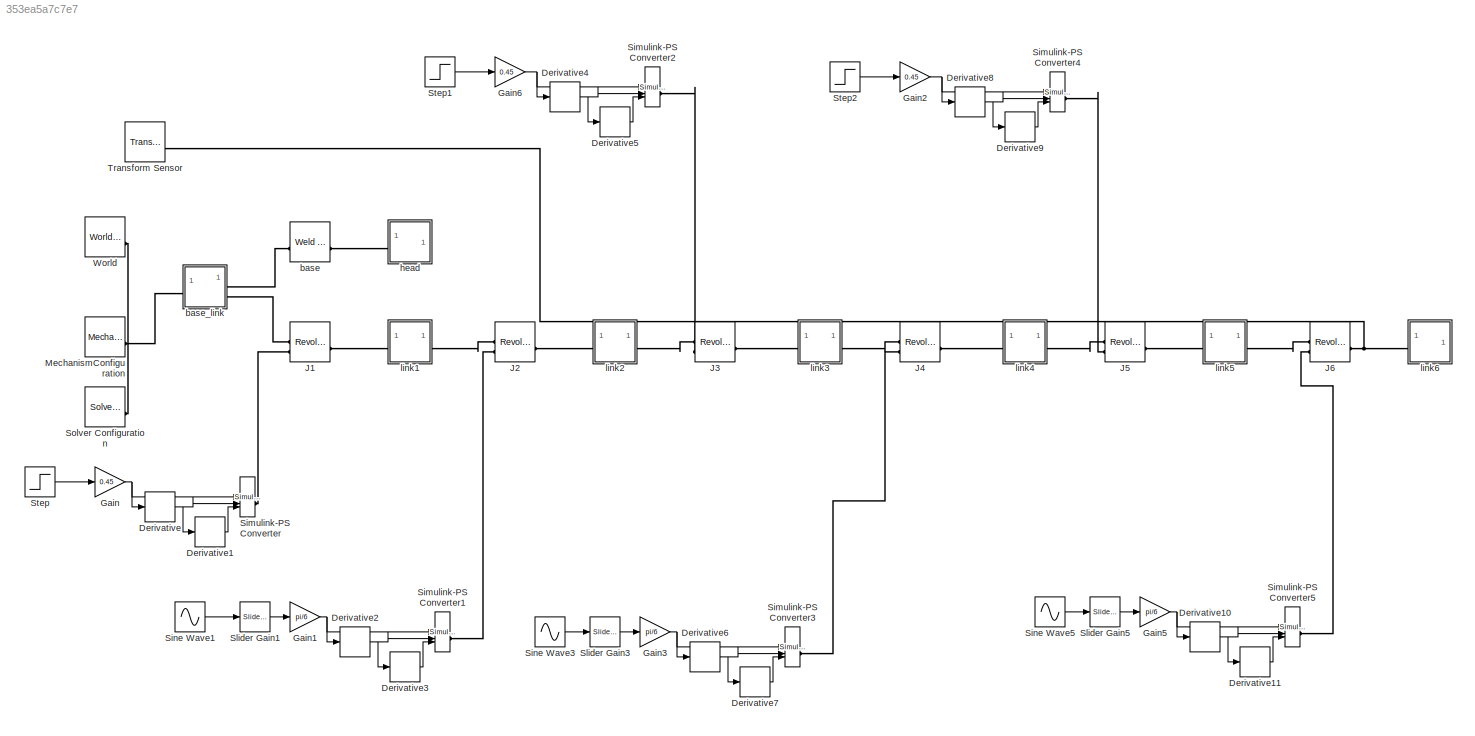
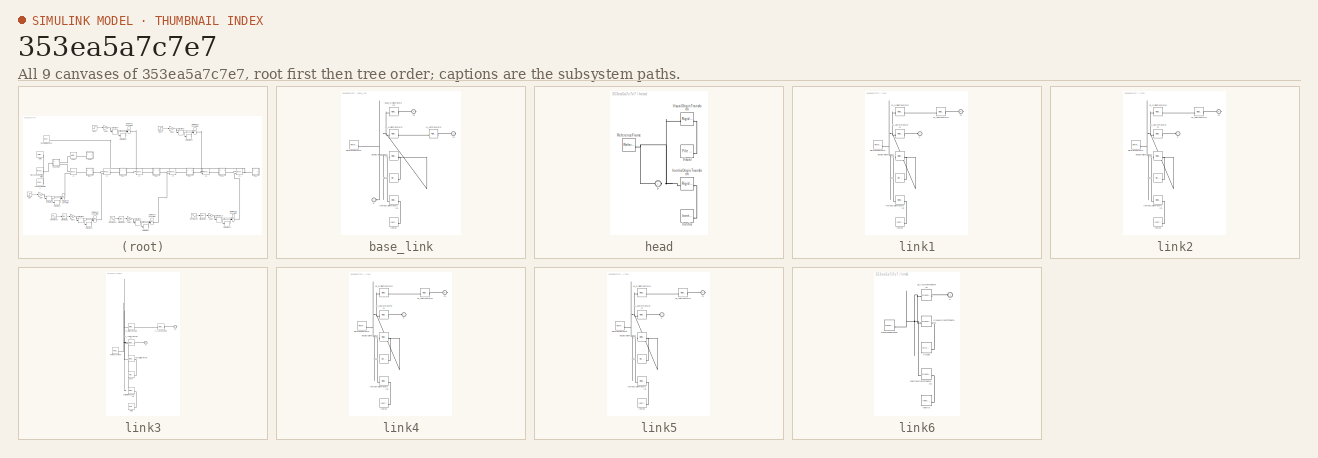
[diagram: thumbnail index - all 9 canvases of the model, root first then tree order]
MODEL slx_353ea5a7c7e7
KIND model
CONFIG AbsTol = auto
CONFIG EnableMultiTasking = off
CONFIG FixedStep = auto
CONFIG MaxStep = auto
CONFIG MinStep = auto
CONFIG RelTol = 1e-3
CONFIG SampleTimeConstraint = Unconstrained
CONFIG SolverName = VariableStepAuto
CONFIG StartTime = 0.0
CONFIG StopTime = 100
BLOCK [Derivative] Derivative
BLOCK [Derivative] Derivative1
BLOCK [Derivative] Derivative10
BLOCK [Derivative] Derivative11
BLOCK [Derivative] Derivative2
BLOCK [Derivative] Derivative3
BLOCK [Derivative] Derivative4
BLOCK [Derivative] Derivative5
BLOCK [Derivative] Derivative6
BLOCK [Derivative] Derivative7
BLOCK [Derivative] Derivative8
BLOCK [Derivative] Derivative9
BLOCK [Gain] Gain
  Gain = 0.45
BLOCK [Gain] Gain1
  Gain = pi/6
BLOCK [Gain] Gain2
  Gain = 0.45
BLOCK [Gain] Gain3
  Gain = pi/6
BLOCK [Gain] Gain5
  Gain = pi/6
BLOCK [Gain] Gain6
  Gain = 0.45
BLOCK [Reference] J1  REF=sm_lib/Joints/Revolute Joint
  SourceBlock = sm_lib/Joints/Revolute Joint
  SourceType = Revolute Joint
BLOCK [Reference] J2  REF=sm_lib/Joints/Revolute Joint
  SourceBlock = sm_lib/Joints/Revolute Joint
  SourceType = Revolute Joint
BLOCK [Reference] J3  REF=sm_lib/Joints/Revolute Joint
  SourceBlock = sm_lib/Joints/Revolute Joint
  SourceType = Revolute Joint
BLOCK [Reference] J4  REF=sm_lib/Joints/Revolute Joint
  SourceBlock = sm_lib/Joints/Revolute Joint
  SourceType = Revolute Joint
BLOCK [Reference] J5  REF=sm_lib/Joints/Revolute Joint
  SourceBlock = sm_lib/Joints/Revolute Joint
  SourceType = Revolute Joint
BLOCK [Reference] J6  REF=sm_lib/Joints/Revolute Joint
  SourceBlock = sm_lib/Joints/Revolute Joint
  SourceType = Revolute Joint
BLOCK [Reference] MechanismConfiguration  REF=sm_lib/Utilities/Mechanism
Configuration
  SourceBlock = sm_lib/Utilities/Mechanism\nConfiguration
  SourceType = Mechanism\nConfiguration
BLOCK [Reference] Simulink-PS Converter  REF=nesl_utility/Simulink-PS
Converter
  SourceBlock = nesl_utility/Simulink-PS\nConverter
  SourceType = Simulink-PS\nConverter
BLOCK [Reference] Simulink-PS Converter1  REF=nesl_utility/Simulink-PS
Converter
  SourceBlock = nesl_utility/Simulink-PS\nConverter
  SourceType = Simulink-PS\nConverter
BLOCK [Reference] Simulink-PS Converter2  REF=nesl_utility/Simulink-PS
Converter
  SourceBlock = nesl_utility/Simulink-PS\nConverter
  SourceType = Simulink-PS\nConverter
BLOCK [Reference] Simulink-PS Converter3  REF=nesl_utility/Simulink-PS
Converter
  SourceBlock = nesl_utility/Simulink-PS\nConverter
  SourceType = Simulink-PS\nConverter
BLOCK [Reference] Simulink-PS Converter4  REF=nesl_utility/Simulink-PS
Converter
  SourceBlock = nesl_utility/Simulink-PS\nConverter
  SourceType = Simulink-PS\nConverter
BLOCK [Reference] Simulink-PS Converter5  REF=nesl_utility/Simulink-PS
Converter
  SourceBlock = nesl_utility/Simulink-PS\nConverter
  SourceType = Simulink-PS\nConverter
BLOCK [Sin] Sine Wave1
  Frequency = 15
  Phase = pi/3
  SampleTime = 0
BLOCK [Sin] Sine Wave3
  Frequency = 10
  Phase = 3*pi/3
  SampleTime = 0
BLOCK [Sin] Sine Wave5
  Frequency = 10
  Phase = 5*pi/3
  SampleTime = 0
BLOCK [Reference] Slider Gain1  REF=simulink/Math
Operations/Slider
Gain
  SourceBlock = simulink/Math\nOperations/Slider\nGain
  SourceType = Slider Gain
BLOCK [Reference] Slider Gain3  REF=simulink/Math
Operations/Slider
Gain
  SourceBlock = simulink/Math\nOperations/Slider\nGain
  SourceType = Slider Gain
BLOCK [Reference] Slider Gain5  REF=simulink/Math
Operations/Slider
Gain
  SourceBlock = simulink/Math\nOperations/Slider\nGain
  SourceType = Slider Gain
BLOCK [Reference] Solver Configuration  REF=nesl_utility/Solver
Configuration
  SourceBlock = nesl_utility/Solver\nConfiguration
  SourceType = Solver\nConfiguration
BLOCK [Step] Step
  SampleTime = 0
  Time = 0
BLOCK [Step] Step1
  SampleTime = 0
  Time = 0
BLOCK [Step] Step2
  SampleTime = 0
  Time = 0
BLOCK [Reference] Transform Sensor  REF=sm_lib/Frames and
Transforms/Transform
Sensor
  SourceBlock = sm_lib/Frames and\nTransforms/Transform\nSensor
  SourceType = Transform\nSensor
BLOCK [Reference] World  REF=sm_lib/Frames and
Transforms/World Frame
  SourceBlock = sm_lib/Frames and\nTransforms/World Frame
  SourceType = World Frame
BLOCK [Reference] base  REF=sm_lib/Joints/Weld Joint
  SourceBlock = sm_lib/Joints/Weld Joint
  SourceType = Weld Joint
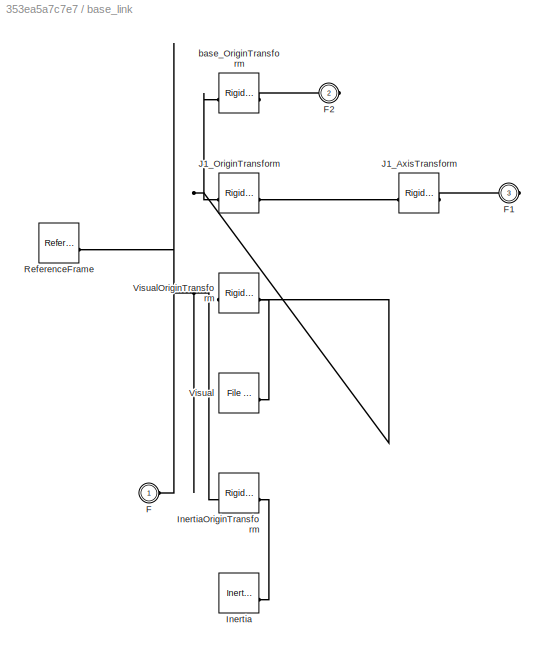
BLOCK [SubSystem] base_link
BLOCK [PMIOPort] base_link/F
  Side = Left
BLOCK [PMIOPort] base_link/F1
  Port = 3
  Side = Right
BLOCK [PMIOPort] base_link/F2
  Port = 2
  Side = Right
BLOCK [Reference] base_link/Inertia  REF=sm_lib/Body Elements/Inertia
  SourceBlock = sm_lib/Body Elements/Inertia
  SourceType = Inertia
BLOCK [Reference] base_link/InertiaOriginTransform  REF=sm_lib/Frames and
Transforms/Rigid
Transform
  SourceBlock = sm_lib/Frames and\nTransforms/Rigid\nTransform
  SourceType = Rigid\nTransform
BLOCK [Reference] base_link/J1_AxisTransform  REF=sm_lib/Frames and
Transforms/Rigid
Transform
  SourceBlock = sm_lib/Frames and\nTransforms/Rigid\nTransform
  SourceType = Rigid\nTransform
BLOCK [Reference] base_link/J1_OriginTransform  REF=sm_lib/Frames and
Transforms/Rigid
Transform
  SourceBlock = sm_lib/Frames and\nTransforms/Rigid\nTransform
  SourceType = Rigid\nTransform
BLOCK [Reference] base_link/ReferenceFrame  REF=sm_lib/Frames and
Transforms/Reference
Frame
  SourceBlock = sm_lib/Frames and\nTransforms/Reference\nFrame
  SourceType = Reference\nFrame
BLOCK [Reference] base_link/Visual  REF=sm_lib/Body Elements/File Solid
  SourceBlock = sm_lib/Body Elements/File Solid
  SourceType = File Solid
BLOCK [Reference] base_link/VisualOriginTransform  REF=sm_lib/Frames and
Transforms/Rigid
Transform
  SourceBlock = sm_lib/Frames and\nTransforms/Rigid\nTransform
  SourceType = Rigid\nTransform
BLOCK [Reference] base_link/base_OriginTransform  REF=sm_lib/Frames and
Transforms/Rigid
Transform
  SourceBlock = sm_lib/Frames and\nTransforms/Rigid\nTransform
  SourceType = Rigid\nTransform
BLOCK [SubSystem] head
BLOCK [PMIOPort] head/F
  Side = Left
BLOCK [Reference] head/Inertia  REF=sm_lib/Body Elements/Inertia
  SourceBlock = sm_lib/Body Elements/Inertia
  SourceType = Inertia
BLOCK [Reference] head/InertiaOriginTransform  REF=sm_lib/Frames and
Transforms/Rigid
Transform
  SourceBlock = sm_lib/Frames and\nTransforms/Rigid\nTransform
  SourceType = Rigid\nTransform
BLOCK [Reference] head/ReferenceFrame  REF=sm_lib/Frames and
Transforms/Reference
Frame
  SourceBlock = sm_lib/Frames and\nTransforms/Reference\nFrame
  SourceType = Reference\nFrame
BLOCK [Reference] head/Visual  REF=sm_lib/Body Elements/File Solid
  SourceBlock = sm_lib/Body Elements/File Solid
  SourceType = File Solid
BLOCK [Reference] head/VisualOriginTransform  REF=sm_lib/Frames and
Transforms/Rigid
Transform
  SourceBlock = sm_lib/Frames and\nTransforms/Rigid\nTransform
  SourceType = Rigid\nTransform
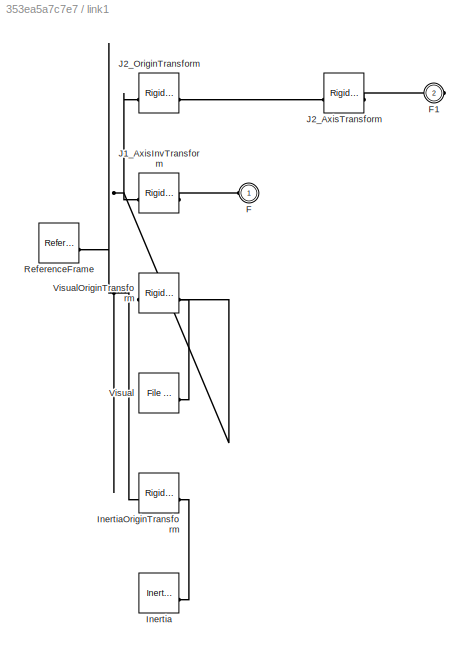
BLOCK [SubSystem] link1
BLOCK [PMIOPort] link1/F
  Side = Left
BLOCK [PMIOPort] link1/F1
  Port = 2
  Side = Right
BLOCK [Reference] link1/Inertia  REF=sm_lib/Body Elements/Inertia
  SourceBlock = sm_lib/Body Elements/Inertia
  SourceType = Inertia
BLOCK [Reference] link1/InertiaOriginTransform  REF=sm_lib/Frames and
Transforms/Rigid
Transform
  SourceBlock = sm_lib/Frames and\nTransforms/Rigid\nTransform
  SourceType = Rigid\nTransform
BLOCK [Reference] link1/J1_AxisInvTransform  REF=sm_lib/Frames and
Transforms/Rigid
Transform
  SourceBlock = sm_lib/Frames and\nTransforms/Rigid\nTransform
  SourceType = Rigid\nTransform
BLOCK [Reference] link1/J2_AxisTransform  REF=sm_lib/Frames and
Transforms/Rigid
Transform
  SourceBlock = sm_lib/Frames and\nTransforms/Rigid\nTransform
  SourceType = Rigid\nTransform
BLOCK [Reference] link1/J2_OriginTransform  REF=sm_lib/Frames and
Transforms/Rigid
Transform
  SourceBlock = sm_lib/Frames and\nTransforms/Rigid\nTransform
  SourceType = Rigid\nTransform
BLOCK [Reference] link1/ReferenceFrame  REF=sm_lib/Frames and
Transforms/Reference
Frame
  SourceBlock = sm_lib/Frames and\nTransforms/Reference\nFrame
  SourceType = Reference\nFrame
BLOCK [Reference] link1/Visual  REF=sm_lib/Body Elements/File Solid
  SourceBlock = sm_lib/Body Elements/File Solid
  SourceType = File Solid
BLOCK [Reference] link1/VisualOriginTransform  REF=sm_lib/Frames and
Transforms/Rigid
Transform
  SourceBlock = sm_lib/Frames and\nTransforms/Rigid\nTransform
  SourceType = Rigid\nTransform
BLOCK [SubSystem] link2
BLOCK [PMIOPort] link2/F
  Side = Left
BLOCK [PMIOPort] link2/F1
  Port = 2
  Side = Right
BLOCK [Reference] link2/Inertia  REF=sm_lib/Body Elements/Inertia
  SourceBlock = sm_lib/Body Elements/Inertia
  SourceType = Inertia
BLOCK [Reference] link2/InertiaOriginTransform  REF=sm_lib/Frames and
Transforms/Rigid
Transform
  SourceBlock = sm_lib/Frames and\nTransforms/Rigid\nTransform
  SourceType = Rigid\nTransform
BLOCK [Reference] link2/J2_AxisInvTransform  REF=sm_lib/Frames and
Transforms/Rigid
Transform
  SourceBlock = sm_lib/Frames and\nTransforms/Rigid\nTransform
  SourceType = Rigid\nTransform
BLOCK [Reference] link2/J3_AxisTransform  REF=sm_lib/Frames and
Transforms/Rigid
Transform
  SourceBlock = sm_lib/Frames and\nTransforms/Rigid\nTransform
  SourceType = Rigid\nTransform
BLOCK [Reference] link2/J3_OriginTransform  REF=sm_lib/Frames and
Transforms/Rigid
Transform
  SourceBlock = sm_lib/Frames and\nTransforms/Rigid\nTransform
  SourceType = Rigid\nTransform
BLOCK [Reference] link2/ReferenceFrame  REF=sm_lib/Frames and
Transforms/Reference
Frame
  SourceBlock = sm_lib/Frames and\nTransforms/Reference\nFrame
  SourceType = Reference\nFrame
BLOCK [Reference] link2/Visual  REF=sm_lib/Body Elements/File Solid
  SourceBlock = sm_lib/Body Elements/File Solid
  SourceType = File Solid
BLOCK [Reference] link2/VisualOriginTransform  REF=sm_lib/Frames and
Transforms/Rigid
Transform
  SourceBlock = sm_lib/Frames and\nTransforms/Rigid\nTransform
  SourceType = Rigid\nTransform
BLOCK [SubSystem] link3
BLOCK [PMIOPort] link3/F
  Side = Left
BLOCK [PMIOPort] link3/F1
  Port = 2
  Side = Right
BLOCK [Reference] link3/Inertia  REF=sm_lib/Body Elements/Inertia
  SourceBlock = sm_lib/Body Elements/Inertia
  SourceType = Inertia
BLOCK [Reference] link3/InertiaOriginTransform  REF=sm_lib/Frames and
Transforms/Rigid
Transform
  SourceBlock = sm_lib/Frames and\nTransforms/Rigid\nTransform
  SourceType = Rigid\nTransform
BLOCK [Reference] link3/J3_AxisInvTransform  REF=sm_lib/Frames and
Transforms/Rigid
Transform
  SourceBlock = sm_lib/Frames and\nTransforms/Rigid\nTransform
  SourceType = Rigid\nTransform
BLOCK [Reference] link3/J4_AxisTransform  REF=sm_lib/Frames and
Transforms/Rigid
Transform
  SourceBlock = sm_lib/Frames and\nTransforms/Rigid\nTransform
  SourceType = Rigid\nTransform
BLOCK [Reference] link3/J4_OriginTransform  REF=sm_lib/Frames and
Transforms/Rigid
Transform
  SourceBlock = sm_lib/Frames and\nTransforms/Rigid\nTransform
  SourceType = Rigid\nTransform
BLOCK [Reference] link3/ReferenceFrame  REF=sm_lib/Frames and
Transforms/Reference
Frame
  SourceBlock = sm_lib/Frames and\nTransforms/Reference\nFrame
  SourceType = Reference\nFrame
BLOCK [Reference] link3/Visual  REF=sm_lib/Body Elements/File Solid
  SourceBlock = sm_lib/Body Elements/File Solid
  SourceType = File Solid
BLOCK [Reference] link3/VisualOriginTransform  REF=sm_lib/Frames and
Transforms/Rigid
Transform
  SourceBlock = sm_lib/Frames and\nTransforms/Rigid\nTransform
  SourceType = Rigid\nTransform
BLOCK [SubSystem] link4
BLOCK [PMIOPort] link4/F
  Side = Left
BLOCK [PMIOPort] link4/F1
  Port = 2
  Side = Right
BLOCK [Reference] link4/Inertia  REF=sm_lib/Body Elements/Inertia
  SourceBlock = sm_lib/Body Elements/Inertia
  SourceType = Inertia
BLOCK [Reference] link4/InertiaOriginTransform  REF=sm_lib/Frames and
Transforms/Rigid
Transform
  SourceBlock = sm_lib/Frames and\nTransforms/Rigid\nTransform
  SourceType = Rigid\nTransform
BLOCK [Reference] link4/J4_AxisInvTransform  REF=sm_lib/Frames and
Transforms/Rigid
Transform
  SourceBlock = sm_lib/Frames and\nTransforms/Rigid\nTransform
  SourceType = Rigid\nTransform
BLOCK [Reference] link4/J5_AxisTransform  REF=sm_lib/Frames and
Transforms/Rigid
Transform
  SourceBlock = sm_lib/Frames and\nTransforms/Rigid\nTransform
  SourceType = Rigid\nTransform
BLOCK [Reference] link4/J5_OriginTransform  REF=sm_lib/Frames and
Transforms/Rigid
Transform
  SourceBlock = sm_lib/Frames and\nTransforms/Rigid\nTransform
  SourceType = Rigid\nTransform
BLOCK [Reference] link4/ReferenceFrame  REF=sm_lib/Frames and
Transforms/Reference
Frame
  SourceBlock = sm_lib/Frames and\nTransforms/Reference\nFrame
  SourceType = Reference\nFrame
BLOCK [Reference] link4/Visual  REF=sm_lib/Body Elements/File Solid
  SourceBlock = sm_lib/Body Elements/File Solid
  SourceType = File Solid
BLOCK [Reference] link4/VisualOriginTransform  REF=sm_lib/Frames and
Transforms/Rigid
Transform
  SourceBlock = sm_lib/Frames and\nTransforms/Rigid\nTransform
  SourceType = Rigid\nTransform
BLOCK [SubSystem] link5
BLOCK [PMIOPort] link5/F
  Side = Left
BLOCK [PMIOPort] link5/F1
  Port = 2
  Side = Right
BLOCK [Reference] link5/Inertia  REF=sm_lib/Body Elements/Inertia
  SourceBlock = sm_lib/Body Elements/Inertia
  SourceType = Inertia
BLOCK [Reference] link5/InertiaOriginTransform  REF=sm_lib/Frames and
Transforms/Rigid
Transform
  SourceBlock = sm_lib/Frames and\nTransforms/Rigid\nTransform
  SourceType = Rigid\nTransform
BLOCK [Reference] link5/J5_AxisInvTransform  REF=sm_lib/Frames and
Transforms/Rigid
Transform
  SourceBlock = sm_lib/Frames and\nTransforms/Rigid\nTransform
  SourceType = Rigid\nTransform
BLOCK [Reference] link5/J6_AxisTransform  REF=sm_lib/Frames and
Transforms/Rigid
Transform
  SourceBlock = sm_lib/Frames and\nTransforms/Rigid\nTransform
  SourceType = Rigid\nTransform
BLOCK [Reference] link5/J6_OriginTransform  REF=sm_lib/Frames and
Transforms/Rigid
Transform
  SourceBlock = sm_lib/Frames and\nTransforms/Rigid\nTransform
  SourceType = Rigid\nTransform
BLOCK [Reference] link5/ReferenceFrame  REF=sm_lib/Frames and
Transforms/Reference
Frame
  SourceBlock = sm_lib/Frames and\nTransforms/Reference\nFrame
  SourceType = Reference\nFrame
BLOCK [Reference] link5/Visual  REF=sm_lib/Body Elements/File Solid
  SourceBlock = sm_lib/Body Elements/File Solid
  SourceType = File Solid
BLOCK [Reference] link5/VisualOriginTransform  REF=sm_lib/Frames and
Transforms/Rigid
Transform
  SourceBlock = sm_lib/Frames and\nTransforms/Rigid\nTransform
  SourceType = Rigid\nTransform
BLOCK [SubSystem] link6
BLOCK [PMIOPort] link6/F
  Side = Left
BLOCK [Reference] link6/Inertia  REF=sm_lib/Body Elements/Inertia
  SourceBlock = sm_lib/Body Elements/Inertia
  SourceType = Inertia
BLOCK [Reference] link6/InertiaOriginTransform  REF=sm_lib/Frames and
Transforms/Rigid
Transform
  SourceBlock = sm_lib/Frames and\nTransforms/Rigid\nTransform
  SourceType = Rigid\nTransform
BLOCK [Reference] link6/J6_AxisInvTransform  REF=sm_lib/Frames and
Transforms/Rigid
Transform
  SourceBlock = sm_lib/Frames and\nTransforms/Rigid\nTransform
  SourceType = Rigid\nTransform
BLOCK [Reference] link6/ReferenceFrame  REF=sm_lib/Frames and
Transforms/Reference
Frame
  SourceBlock = sm_lib/Frames and\nTransforms/Reference\nFrame
  SourceType = Reference\nFrame
BLOCK [Reference] link6/Visual  REF=sm_lib/Body Elements/File Solid
  SourceBlock = sm_lib/Body Elements/File Solid
  SourceType = File Solid
BLOCK [Reference] link6/VisualOriginTransform  REF=sm_lib/Frames and
Transforms/Rigid
Transform
  SourceBlock = sm_lib/Frames and\nTransforms/Rigid\nTransform
  SourceType = Rigid\nTransform
NET Derivative10:1 -> Derivative11:1, Simulink-PS Converter5:2
LINE Derivative11:1 -> Simulink-PS Converter5:3
LINE Derivative1:1 -> Simulink-PS Converter:3
NET Derivative2:1 -> Derivative3:1, Simulink-PS Converter1:2
LINE Derivative3:1 -> Simulink-PS Converter1:3
NET Derivative4:1 -> Derivative5:1, Simulink-PS Converter2:2
LINE Derivative5:1 -> Simulink-PS Converter2:3
NET Derivative6:1 -> Derivative7:1, Simulink-PS Converter3:2
LINE Derivative7:1 -> Simulink-PS Converter3:3
NET Derivative8:1 -> Derivative9:1, Simulink-PS Converter4:2
LINE Derivative9:1 -> Simulink-PS Converter4:3
NET Derivative:1 -> Derivative1:1, Simulink-PS Converter:2
NET Gain1:1 -> Derivative2:1, Simulink-PS Converter1:1
NET Gain2:1 -> Derivative8:1, Simulink-PS Converter4:1
NET Gain3:1 -> Derivative6:1, Simulink-PS Converter3:1
NET Gain5:1 -> Derivative10:1, Simulink-PS Converter5:1
NET Gain6:1 -> Derivative4:1, Simulink-PS Converter2:1
NET Gain:1 -> Derivative:1, Simulink-PS Converter:1
LINE Sine Wave1:1 -> Slider Gain1:1
LINE Sine Wave3:1 -> Slider Gain3:1
LINE Sine Wave5:1 -> Slider Gain5:1
LINE Slider Gain1:1 -> Gain1:1
LINE Slider Gain3:1 -> Gain3:1
LINE Slider Gain5:1 -> Gain5:1
LINE Step1:1 -> Gain6:1
LINE Step2:1 -> Gain2:1
LINE Step:1 -> Gain:1
PLINE J1:LConn1 -- base_link:RConn2
PLINE J1:LConn2 -- Simulink-PS Converter:RConn1
PLINE J1:RConn1 -- link1:LConn1
PLINE J2:LConn1 -- link1:RConn1
PLINE J2:LConn2 -- Simulink-PS Converter1:RConn1
PLINE J2:RConn1 -- link2:LConn1
PLINE J3:LConn1 -- link2:RConn1
PLINE J3:LConn2 -- Simulink-PS Converter2:RConn1
PLINE J3:RConn1 -- link3:LConn1
PLINE J4:LConn1 -- link3:RConn1
PLINE J4:LConn2 -- Simulink-PS Converter3:RConn1
PLINE J4:RConn1 -- link4:LConn1
PLINE J5:LConn1 -- link4:RConn1
PLINE J5:LConn2 -- Simulink-PS Converter4:RConn1
PLINE J5:RConn1 -- link5:LConn1
PLINE J6:LConn1 -- link5:RConn1
PLINE J6:LConn2 -- Simulink-PS Converter5:RConn1
PNET net1: J6:RConn1 -- Transform Sensor:RConn1 -- link6:LConn1
PNET net2: MechanismConfiguration:RConn1 -- Solver Configuration:RConn1 -- World:RConn1 -- base_link:LConn1
PLINE base:LConn1 -- base_link:RConn1
PLINE base:RConn1 -- head:LConn1
PLINE base_link/F1:RConn1 -- base_link/J1_AxisTransform:RConn1
PLINE base_link/F2:RConn1 -- base_link/base_OriginTransform:RConn1
PNET net3: base_link/F:RConn1 -- base_link/InertiaOriginTransform:LConn1 -- base_link/J1_OriginTransform:LConn1 -- base_link/ReferenceFrame:RConn1 -- base_link/VisualOriginTransform:LConn1 -- base_link/base_OriginTransform:LConn1
PLINE base_link/Inertia:RConn1 -- base_link/InertiaOriginTransform:RConn1
PLINE base_link/J1_AxisTransform:LConn1 -- base_link/J1_OriginTransform:RConn1
PLINE base_link/Visual:RConn1 -- base_link/VisualOriginTransform:RConn1
PNET net4: head/F:RConn1 -- head/InertiaOriginTransform:LConn1 -- head/ReferenceFrame:RConn1 -- head/VisualOriginTransform:LConn1
PLINE head/Inertia:RConn1 -- head/InertiaOriginTransform:RConn1
PLINE head/Visual:RConn1 -- head/VisualOriginTransform:RConn1
PLINE link1/F1:RConn1 -- link1/J2_AxisTransform:RConn1
PLINE link1/F:RConn1 -- link1/J1_AxisInvTransform:RConn1
PLINE link1/Inertia:RConn1 -- link1/InertiaOriginTransform:RConn1
PNET net5: link1/InertiaOriginTransform:LConn1 -- link1/J1_AxisInvTransform:LConn1 -- link1/J2_OriginTransform:LConn1 -- link1/ReferenceFrame:RConn1 -- link1/VisualOriginTransform:LConn1
PLINE link1/J2_AxisTransform:LConn1 -- link1/J2_OriginTransform:RConn1
PLINE link1/Visual:RConn1 -- link1/VisualOriginTransform:RConn1
PLINE link2/F1:RConn1 -- link2/J3_AxisTransform:RConn1
PLINE link2/F:RConn1 -- link2/J2_AxisInvTransform:RConn1
PLINE link2/Inertia:RConn1 -- link2/InertiaOriginTransform:RConn1
PNET net6: link2/InertiaOriginTransform:LConn1 -- link2/J2_AxisInvTransform:LConn1 -- link2/J3_OriginTransform:LConn1 -- link2/ReferenceFrame:RConn1 -- link2/VisualOriginTransform:LConn1
PLINE link2/J3_AxisTransform:LConn1 -- link2/J3_OriginTransform:RConn1
PLINE link2/Visual:RConn1 -- link2/VisualOriginTransform:RConn1
PLINE link3/F1:RConn1 -- link3/J4_AxisTransform:RConn1
PLINE link3/F:RConn1 -- link3/J3_AxisInvTransform:RConn1
PLINE link3/Inertia:RConn1 -- link3/InertiaOriginTransform:RConn1
PNET net7: link3/InertiaOriginTransform:LConn1 -- link3/J3_AxisInvTransform:LConn1 -- link3/J4_OriginTransform:LConn1 -- link3/ReferenceFrame:RConn1 -- link3/VisualOriginTransform:LConn1
PLINE link3/J4_AxisTransform:LConn1 -- link3/J4_OriginTransform:RConn1
PLINE link3/Visual:RConn1 -- link3/VisualOriginTransform:RConn1
PLINE link4/F1:RConn1 -- link4/J5_AxisTransform:RConn1
PLINE link4/F:RConn1 -- link4/J4_AxisInvTransform:RConn1
PLINE link4/Inertia:RConn1 -- link4/InertiaOriginTransform:RConn1
PNET net8: link4/InertiaOriginTransform:LConn1 -- link4/J4_AxisInvTransform:LConn1 -- link4/J5_OriginTransform:LConn1 -- link4/ReferenceFrame:RConn1 -- link4/VisualOriginTransform:LConn1
PLINE link4/J5_AxisTransform:LConn1 -- link4/J5_OriginTransform:RConn1
PLINE link4/Visual:RConn1 -- link4/VisualOriginTransform:RConn1
PLINE link5/F1:RConn1 -- link5/J6_AxisTransform:RConn1
PLINE link5/F:RConn1 -- link5/J5_AxisInvTransform:RConn1
PLINE link5/Inertia:RConn1 -- link5/InertiaOriginTransform:RConn1
PNET net9: link5/InertiaOriginTransform:LConn1 -- link5/J5_AxisInvTransform:LConn1 -- link5/J6_OriginTransform:LConn1 -- link5/ReferenceFrame:RConn1 -- link5/VisualOriginTransform:LConn1
PLINE link5/J6_AxisTransform:LConn1 -- link5/J6_OriginTransform:RConn1
PLINE link5/Visual:RConn1 -- link5/VisualOriginTransform:RConn1
PLINE link6/F:RConn1 -- link6/J6_AxisInvTransform:RConn1
PLINE link6/Inertia:RConn1 -- link6/InertiaOriginTransform:RConn1
PNET net10: link6/InertiaOriginTransform:LConn1 -- link6/J6_AxisInvTransform:LConn1 -- link6/ReferenceFrame:RConn1 -- link6/VisualOriginTransform:LConn1
PLINE link6/Visual:RConn1 -- link6/VisualOriginTransform:RConn1
note: NET lines group one-source signal fan-out (src -> all destinations, sorted); 1:1 wires keep LINE; PNET lines group multi-terminal physical nets as a canonical sorted terminal list (undirected conserving connections); 2-terminal nets keep the pairwise PLINE form
